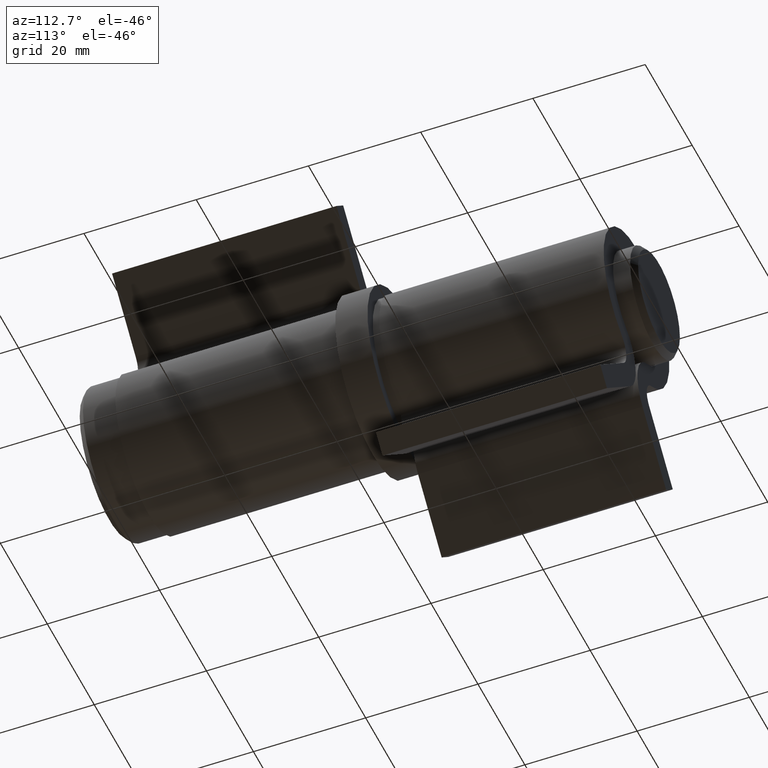
[diagram: clean part render]
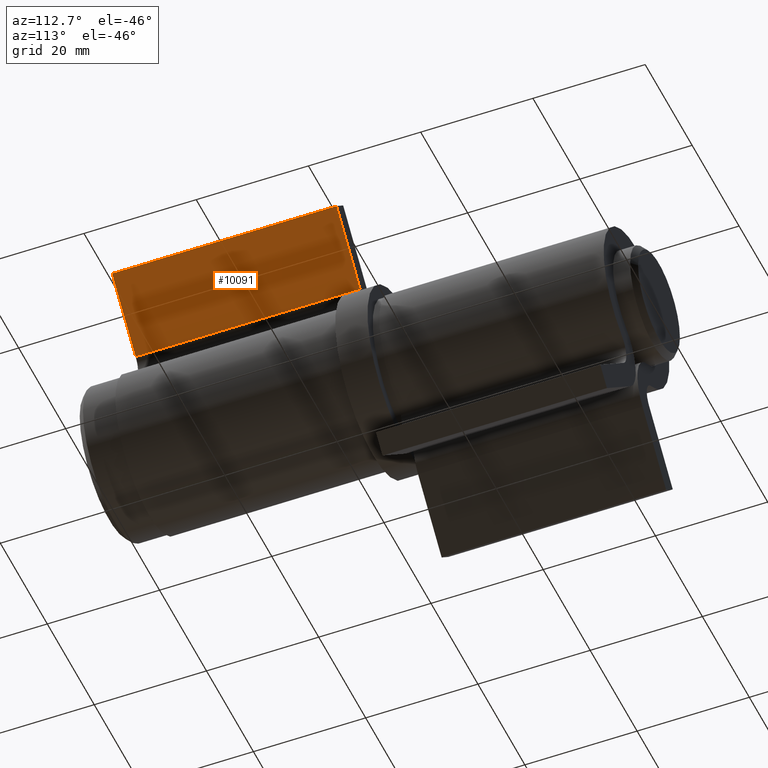
[diagram: same view with one face highlighted and labeled with its STEP entity id]
A machine part, auxiliary view. The second image highlights one B-rep face of the part: STEP entity #10091.
In plain terms, the highlighted planar face has unit normal (-0.7071, 0, 0.7071).
Its self-contained STEP definition (entity closure, byte-faithful):
#171 = VECTOR ( 'NONE', #8454, 1000.000000000000000 ) ;
#205 = VERTEX_POINT ( 'NONE', #9385 ) ;
#631 = DIRECTION ( 'NONE',  ( 0.7071067811865459074, 0.000000000000000000, -0.7071067811865491270 ) ) ;
#664 = EDGE_CURVE ( 'NONE', #4735, #205, #4163, .T. ) ;
#1423 = VECTOR ( 'NONE', #8917, 1000.000000000000114 ) ;
#1618 = FACE_OUTER_BOUND ( 'NONE', #1881, .T. ) ;
#1764 = VECTOR ( 'NONE', #3274, 1000.000000000000000 ) ;
#1881 = EDGE_LOOP ( 'NONE', ( #5477, #7703, #10307, #8770 ) ) ;
#2562 = PLANE ( 'NONE',  #5320 ) ;
#3274 = DIRECTION ( 'NONE',  ( -0.000000000000000000, -1.000000000000000000, 0.000000000000000000 ) ) ;
#3316 = CARTESIAN_POINT ( 'NONE',  ( -15.44365081389617345, -20.00000000000000355, -28.17157287525408904 ) ) ;
#3970 = LINE ( 'NONE', #11691, #1423 ) ;
#4061 = EDGE_CURVE ( 'NONE', #6496, #205, #3970, .T. ) ;
#4163 = LINE ( 'NONE', #5224, #1764 ) ;
#4474 = LINE ( 'NONE', #11671, #7627 ) ;
#4532 = LINE ( 'NONE', #7497, #171 ) ;
#4735 = VERTEX_POINT ( 'NONE', #5158 ) ;
#5158 = CARTESIAN_POINT ( 'NONE',  ( -5.383379093791876180, 19.99999999999998934, -18.11130115514979622 ) ) ;
#5224 = CARTESIAN_POINT ( 'NONE',  ( -5.383379093791876180, 19.99999999999998934, -18.11130115514979622 ) ) ;
#5320 = AXIS2_PLACEMENT_3D ( 'NONE', #7074, #631, #11204 ) ;
#5477 = ORIENTED_EDGE ( 'NONE', *, *, #4061, .T. ) ;
#6496 = VERTEX_POINT ( 'NONE', #3316 ) ;
#7074 = CARTESIAN_POINT ( 'NONE',  ( -5.383379093791874404, 19.99999999999998934, -18.11130115514979622 ) ) ;
#7497 = CARTESIAN_POINT ( 'NONE',  ( -15.44365081389617345, 19.99999999999998934, -28.17157287525408904 ) ) ;
#7627 = VECTOR ( 'NONE', #11713, 1000.000000000000114 ) ;
#7703 = ORIENTED_EDGE ( 'NONE', *, *, #664, .F. ) ;
#8454 = DIRECTION ( 'NONE',  ( -0.000000000000000000, -1.000000000000000000, 0.000000000000000000 ) ) ;
#8770 = ORIENTED_EDGE ( 'NONE', *, *, #12510, .T. ) ;
#8808 = CARTESIAN_POINT ( 'NONE',  ( -15.44365081389617345, 19.99999999999998934, -28.17157287525408904 ) ) ;
#8917 = DIRECTION ( 'NONE',  ( 0.7071067811865490160, 0.000000000000000000, 0.7071067811865460184 ) ) ;
#9385 = CARTESIAN_POINT ( 'NONE',  ( -5.383379093791876180, -20.00000000000000355, -18.11130115514979622 ) ) ;
#9467 = EDGE_CURVE ( 'NONE', #9978, #4735, #4474, .T. ) ;
#9978 = VERTEX_POINT ( 'NONE', #8808 ) ;
#10091 = ADVANCED_FACE ( 'NONE', ( #1618 ), #2562, .F. ) ;
#10307 = ORIENTED_EDGE ( 'NONE', *, *, #9467, .F. ) ;
#11204 = DIRECTION ( 'NONE',  ( -0.7071067811865491270, 0.000000000000000000, -0.7071067811865459074 ) ) ;
#11671 = CARTESIAN_POINT ( 'NONE',  ( -5.383379093791874404, 19.99999999999998934, -18.11130115514979622 ) ) ;
#11691 = CARTESIAN_POINT ( 'NONE',  ( -5.383379093791874404, -20.00000000000000355, -18.11130115514979622 ) ) ;
#11713 = DIRECTION ( 'NONE',  ( 0.7071067811865490160, 0.000000000000000000, 0.7071067811865460184 ) ) ;
#12510 = EDGE_CURVE ( 'NONE', #9978, #6496, #4532, .T. ) ;